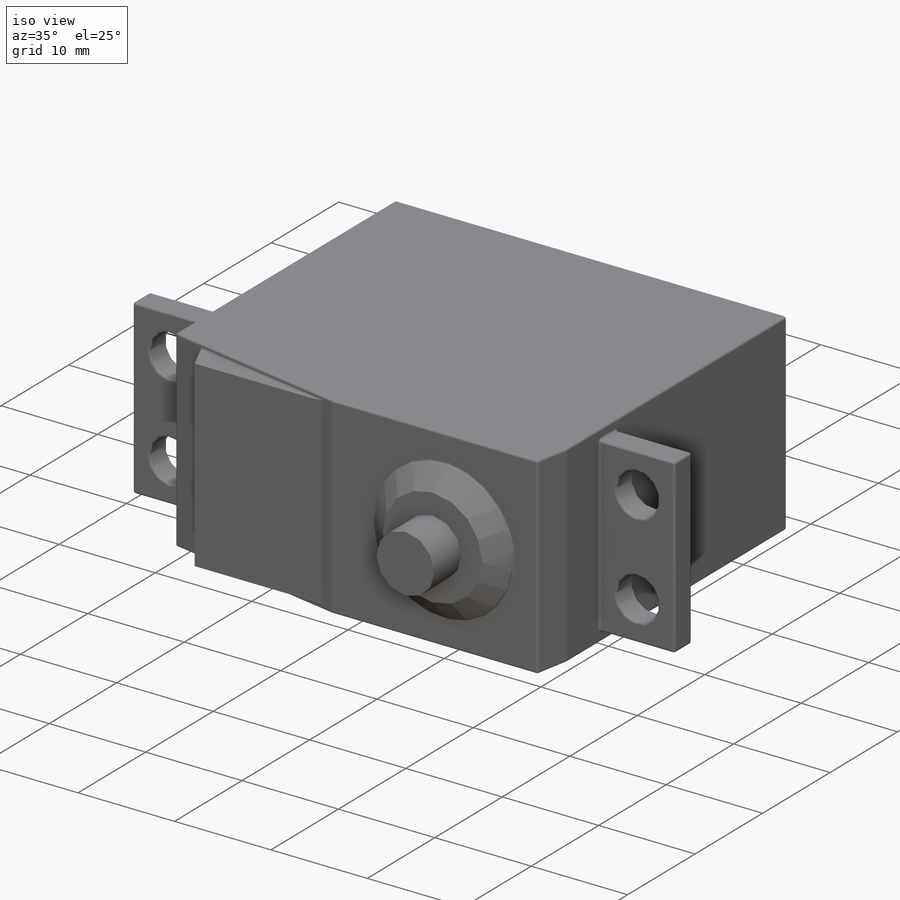
[diagram: iso view]
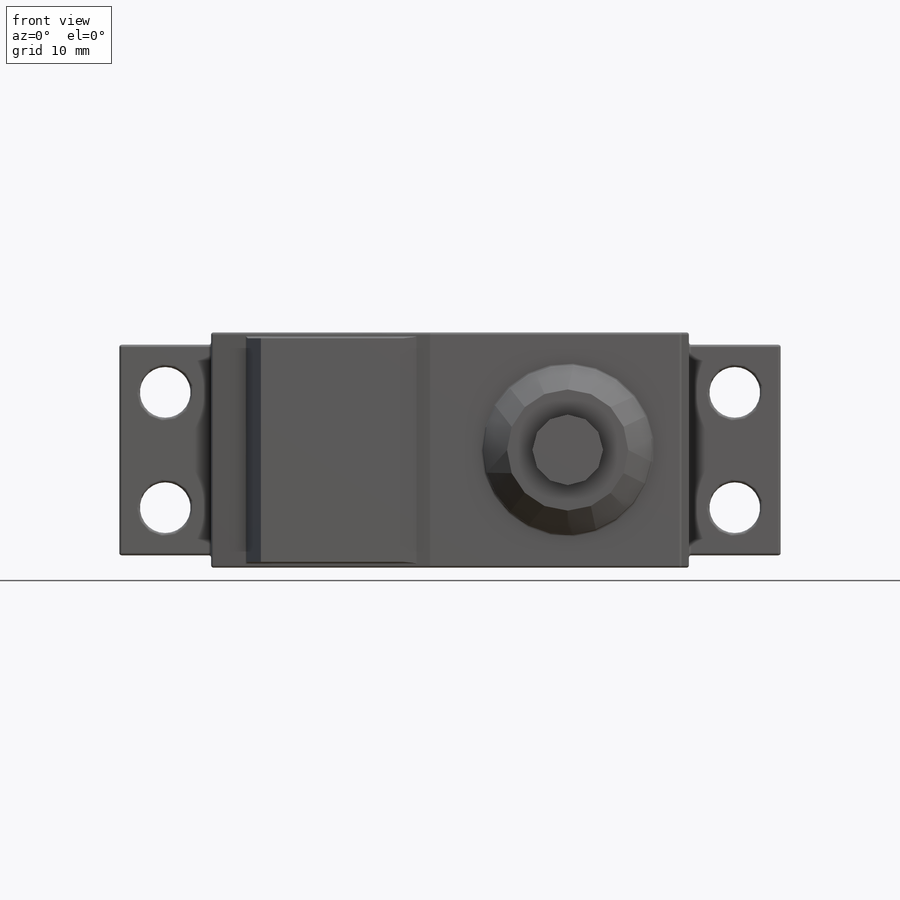
[diagram: front view]
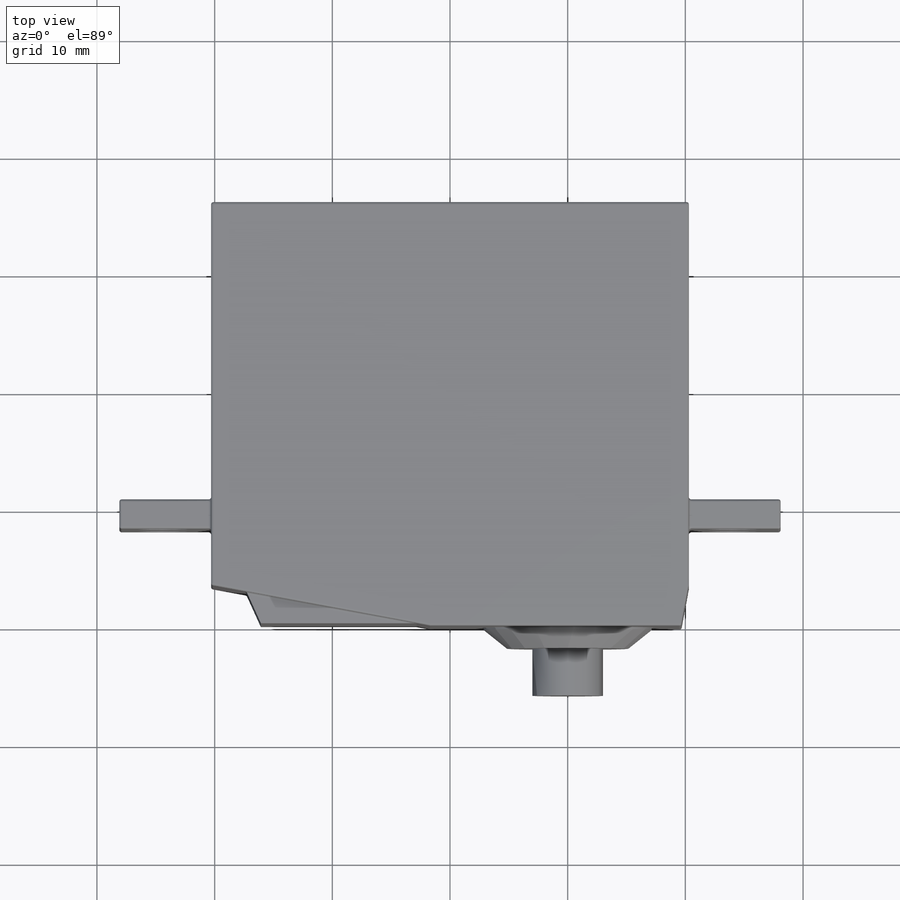
[diagram: top view]
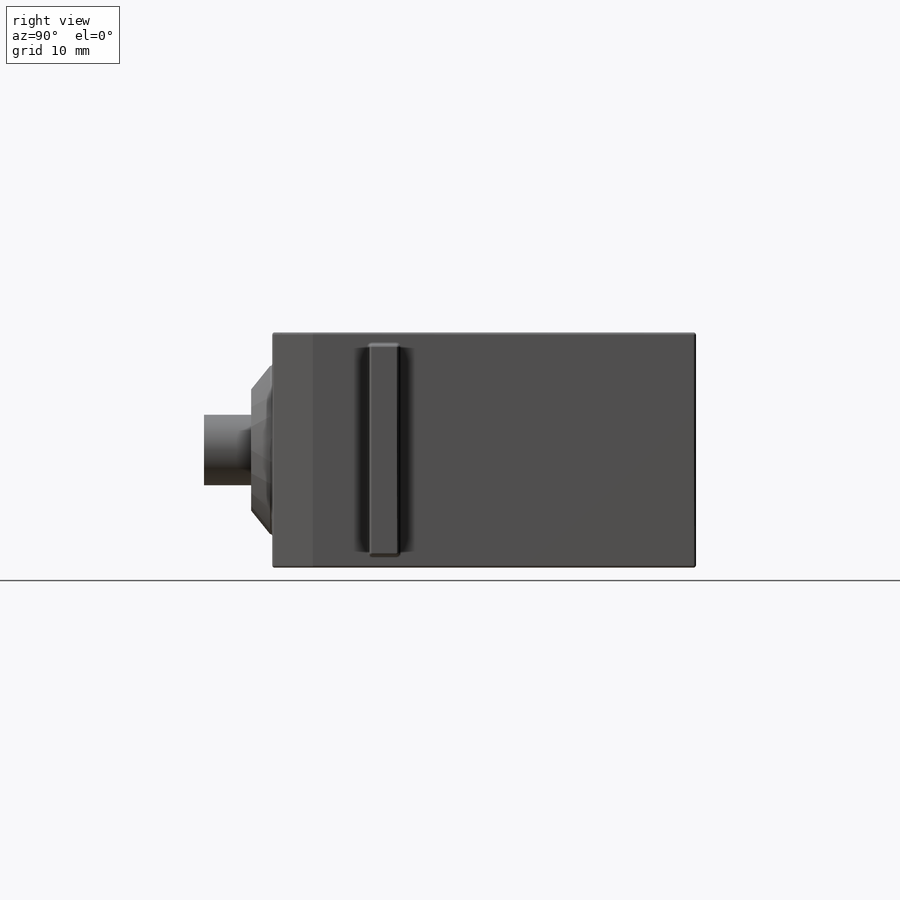
[diagram: right view]
SOLIDWORKS PART (.sldprt)
format: sldprt  version: not decoded by parser v0  size: 271,360 bytes
history: native  units: mm
features: sketch x6, extrude x5, material x1, chamfer x1, cut_extrude x1, fillet x1 (+11 scaffold rows collapsed)
feature tree (26):
  scaffold x11  (default folders/planes/origin — collapsed)
  material  "Material <not specified>"
  sketch  "Sketch1"  dims[c1.D1=3.5mm c1.D2=22.0mm c1.D3=10.3mm c1.D4=3.5mm c2.D4=80.0deg c2.D5=36.0mm c2.D6=40.6mm]
  extrude  "Extrude1"  Depth=20mm
  sketch  "Sketch2"  dims[c1.D1=7.8mm c1.D2=~52.314795mm c2.D2=90.0deg c3.D2=7.8mm c3.D3=2.5mm c3.D4=27.75mm]
  extrude  "Extrude2"  Depth=17.9mm
  sketch  "Sketch3"  dims[D1=14.3mm]
  extrude  "Extrude3"  Depth=1.8mm
  sketch  "Sketch4"  dims[D1=6.0mm]
  extrude  "Extrude4"  Depth=4mm
  chamfer  "Chamfer1"  Distance=1.6mm
  sketch  "Sketch5"
  extrude  "Extrude5"  Depth=19mm
  sketch  "Sketch6"  dims[D1=4.4mm D2=48.4mm D3=9.8mm]
  cut_extrude  "Extrude6"  Depth=19mm
  fillet  "Fillet2"  Radius=0.2mm
decode coverage: 13 of 14 modeling features carry decoded parameters
note: ~ marks probable driven/reference dimensions
note: suppression state not decoded; provenance and decode notes live in map.json
